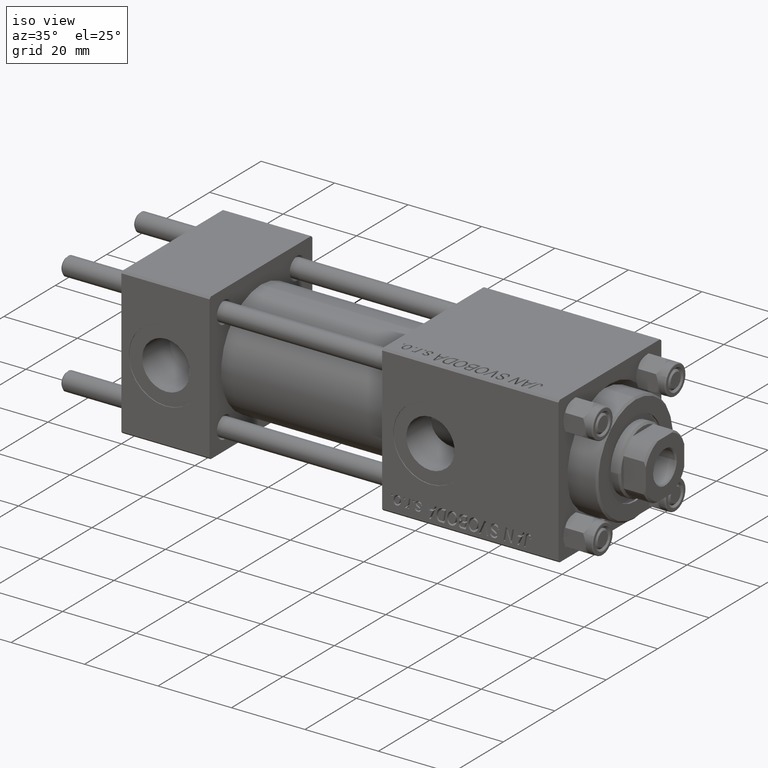
[diagram: clean part render]
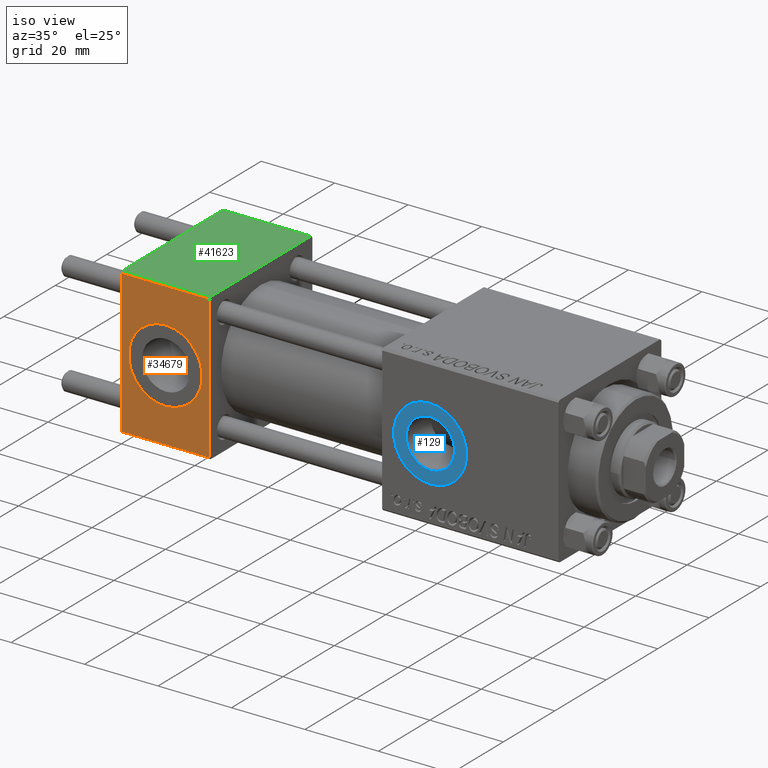
[diagram: same view with three faces highlighted in distinct colors, each labeled with its STEP entity id]
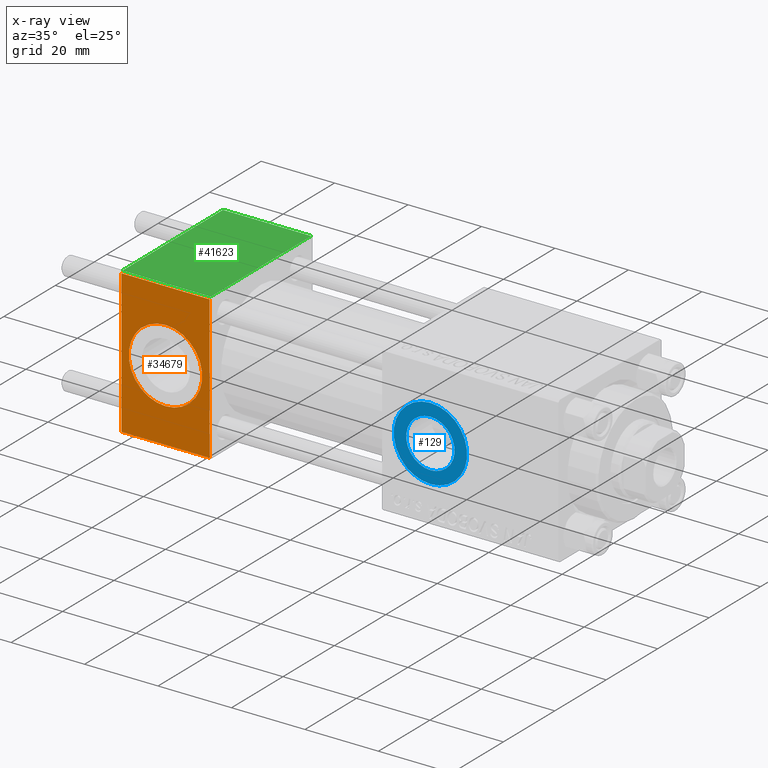
[diagram: x-ray of the same camera — body ghosted, the three highlighted faces saturated]
A machine part, iso view with three faces highlighted in distinct colors.
The next image is the same camera in x-ray (body ghosted, the three faces saturated) — at least one of them is partly hidden behind the body in this view.
Their STEP definitions:

[orange] entity #34679 — the highlighted planar face has unit normal (0, 1, 0).
#209 = VECTOR ( 'NONE', #28064, 1000.000000000000000 ) ;
#1475 = CARTESIAN_POINT ( 'NONE',  ( 24.00000000000000000, -20.00000000000000355, 19.49999999999998224 ) ) ;
#1702 = EDGE_CURVE ( 'NONE', #36362, #7899, #15294, .T. ) ;
#3489 = CARTESIAN_POINT ( 'NONE',  ( 0.000000000000000000, -20.00000000000000355, 19.99999999999998934 ) ) ;
#5549 = CARTESIAN_POINT ( 'NONE',  ( 12.00000000000000178, -20.00000000000000355, 9.999999999999994671 ) ) ;
#5555 = CARTESIAN_POINT ( 'NONE',  ( 24.00000000000000000, -20.00000000000000000, -19.49999999999999645 ) ) ;
#6173 = FACE_OUTER_BOUND ( 'NONE', #49601, .T. ) ;
#6417 = DIRECTION ( 'NONE',  ( -0.000000000000000000, 1.000000000000000000, 8.673617379884036705E-17 ) ) ;
#7899 = VERTEX_POINT ( 'NONE', #24093 ) ;
#9008 = VERTEX_POINT ( 'NONE', #1475 ) ;
#11411 = EDGE_CURVE ( 'NONE', #23133, #46615, #46999, .T. ) ;
#11420 = LINE ( 'NONE', #15208, #23187 ) ;
#15031 = ORIENTED_EDGE ( 'NONE', *, *, #21640, .T. ) ;
#15208 = CARTESIAN_POINT ( 'NONE',  ( 24.00000000000000000, -20.00000000000000355, 19.49999999999998224 ) ) ;
#15294 = LINE ( 'NONE', #3489, #34773 ) ;
#15801 = ORIENTED_EDGE ( 'NONE', *, *, #23458, .T. ) ;
#17106 = VERTEX_POINT ( 'NONE', #5555 ) ;
#17409 = DIRECTION ( 'NONE',  ( 0.000000000000000000, 0.000000000000000000, -1.000000000000000000 ) ) ;
#17875 = CIRCLE ( 'NONE', #37146, 9.999999999999996447 ) ;
#18143 = CARTESIAN_POINT ( 'NONE',  ( 12.00000000000000000, -20.00000000000000355, -1.734723475976807883E-15 ) ) ;
#18754 = DIRECTION ( 'NONE',  ( -1.000000000000000000, 0.000000000000000000, 0.000000000000000000 ) ) ;
#19706 = AXIS2_PLACEMENT_3D ( 'NONE', #18143, #49543, #44522 ) ;
#20153 = LINE ( 'NONE', #23677, #32773 ) ;
#21536 = CARTESIAN_POINT ( 'NONE',  ( 24.00000000000000000, -20.00000000000000355, 19.99999999999998934 ) ) ;
#21640 = EDGE_CURVE ( 'NONE', #7899, #17106, #20153, .T. ) ;
#21778 = DIRECTION ( 'NONE',  ( 0.000000000000000000, -8.673617379884036705E-17, 1.000000000000000000 ) ) ;
#23133 = VERTEX_POINT ( 'NONE', #5549 ) ;
#23187 = VECTOR ( 'NONE', #18754, 1000.000000000000000 ) ;
#23458 = EDGE_CURVE ( 'NONE', #9008, #36362, #11420, .T. ) ;
#23677 = CARTESIAN_POINT ( 'NONE',  ( 24.00000000000000000, -20.00000000000000000, -19.49999999999999645 ) ) ;
#24093 = CARTESIAN_POINT ( 'NONE',  ( 0.000000000000000000, -20.00000000000000000, -19.49999999999999645 ) ) ;
#24158 = ORIENTED_EDGE ( 'NONE', *, *, #37279, .F. ) ;
#24992 = EDGE_LOOP ( 'NONE', ( #34211, #44038 ) ) ;
#25951 = DIRECTION ( 'NONE',  ( 0.000000000000000000, -1.000000000000000000, -8.673617379884036705E-17 ) ) ;
#28064 = DIRECTION ( 'NONE',  ( 0.000000000000000000, 8.673617379884036705E-17, -1.000000000000000000 ) ) ;
#29073 = FACE_BOUND ( 'NONE', #24992, .T. ) ;
#29881 = AXIS2_PLACEMENT_3D ( 'NONE', #21536, #6417, #21778 ) ;
#31713 = DIRECTION ( 'NONE',  ( 1.000000000000000000, 0.000000000000000000, 0.000000000000000000 ) ) ;
#32073 = LINE ( 'NONE', #43143, #209 ) ;
#32773 = VECTOR ( 'NONE', #31713, 1000.000000000000000 ) ;
#34211 = ORIENTED_EDGE ( 'NONE', *, *, #35802, .F. ) ;
#34487 = ORIENTED_EDGE ( 'NONE', *, *, #1702, .T. ) ;
#34679 = ADVANCED_FACE ( 'NONE', ( #29073, #6173 ), #41118, .F. ) ;
#34773 = VECTOR ( 'NONE', #41215, 1000.000000000000000 ) ;
#35802 = EDGE_CURVE ( 'NONE', #46615, #23133, #17875, .T. ) ;
#36362 = VERTEX_POINT ( 'NONE', #44428 ) ;
#37146 = AXIS2_PLACEMENT_3D ( 'NONE', #44799, #25951, #17409 ) ;
#37279 = EDGE_CURVE ( 'NONE', #9008, #17106, #32073, .T. ) ;
#41118 = PLANE ( 'NONE',  #29881 ) ;
#41215 = DIRECTION ( 'NONE',  ( 0.000000000000000000, 8.673617379884036705E-17, -1.000000000000000000 ) ) ;
#43143 = CARTESIAN_POINT ( 'NONE',  ( 24.00000000000000000, -20.00000000000000355, 19.99999999999998934 ) ) ;
#44038 = ORIENTED_EDGE ( 'NONE', *, *, #11411, .F. ) ;
#44428 = CARTESIAN_POINT ( 'NONE',  ( 0.000000000000000000, -20.00000000000000355, 19.49999999999998224 ) ) ;
#44522 = DIRECTION ( 'NONE',  ( 0.000000000000000000, 0.000000000000000000, -1.000000000000000000 ) ) ;
#44799 = CARTESIAN_POINT ( 'NONE',  ( 12.00000000000000000, -20.00000000000000355, -1.734723475976807883E-15 ) ) ;
#46615 = VERTEX_POINT ( 'NONE', #47269 ) ;
#46999 = CIRCLE ( 'NONE', #19706, 9.999999999999996447 ) ;
#47269 = CARTESIAN_POINT ( 'NONE',  ( 12.00000000000000000, -20.00000000000000355, -9.999999999999998224 ) ) ;
#49543 = DIRECTION ( 'NONE',  ( 0.000000000000000000, -1.000000000000000000, -8.673617379884036705E-17 ) ) ;
#49601 = EDGE_LOOP ( 'NONE', ( #34487, #15031, #24158, #15801 ) ) ;

[blue] entity #129 — the highlighted planar face has unit normal (0, -1, -0).
#129 = ADVANCED_FACE ( 'NONE', ( #49597, #10884 ), #45077, .T. ) ;
#1379 = VERTEX_POINT ( 'NONE', #48549 ) ;
#1425 = CARTESIAN_POINT ( 'NONE',  ( 84.00000000000000000, -19.80000000000000426, -1.717376241217039812E-15 ) ) ;
#3446 = AXIS2_PLACEMENT_3D ( 'NONE', #4674, #35585, #46410 ) ;
#4674 = CARTESIAN_POINT ( 'NONE',  ( 84.00000000000000000, -19.80000000000000426, -1.717376241217039812E-15 ) ) ;
#5260 = DIRECTION ( 'NONE',  ( 0.000000000000000000, 0.000000000000000000, -1.000000000000000000 ) ) ;
#6024 = CIRCLE ( 'NONE', #46961, 9.999999999999994671 ) ;
#7353 = CIRCLE ( 'NONE', #42661, 9.999999999999994671 ) ;
#7580 = CARTESIAN_POINT ( 'NONE',  ( 84.00000000000000000, -19.80000000000000426, 6.580000000000000071 ) ) ;
#8093 = DIRECTION ( 'NONE',  ( 0.000000000000000000, 0.000000000000000000, -1.000000000000000000 ) ) ;
#8490 = ORIENTED_EDGE ( 'NONE', *, *, #29656, .T. ) ;
#9873 = ORIENTED_EDGE ( 'NONE', *, *, #37254, .F. ) ;
#10884 = FACE_OUTER_BOUND ( 'NONE', #43493, .T. ) ;
#12879 = ORIENTED_EDGE ( 'NONE', *, *, #25104, .F. ) ;
#12991 = DIRECTION ( 'NONE',  ( 0.000000000000000000, -1.000000000000000000, -8.673617379884036705E-17 ) ) ;
#14415 = DIRECTION ( 'NONE',  ( 0.000000000000000000, -1.000000000000000000, -8.673617379884036705E-17 ) ) ;
#14684 = CIRCLE ( 'NONE', #3446, 6.580000000000001847 ) ;
#17853 = AXIS2_PLACEMENT_3D ( 'NONE', #38052, #14415, #48847 ) ;
#17939 = EDGE_LOOP ( 'NONE', ( #12879, #9873 ) ) ;
#18477 = CIRCLE ( 'NONE', #48956, 6.580000000000001847 ) ;
#21112 = DIRECTION ( 'NONE',  ( 0.000000000000000000, -1.000000000000000000, -8.673617379884036705E-17 ) ) ;
#21799 = CARTESIAN_POINT ( 'NONE',  ( 84.00000000000000000, -19.80000000000000426, -9.999999999999996447 ) ) ;
#25104 = EDGE_CURVE ( 'NONE', #43225, #36669, #18477, .T. ) ;
#27229 = CARTESIAN_POINT ( 'NONE',  ( 84.00000000000000000, -19.80000000000000426, -1.717376241217039812E-15 ) ) ;
#29656 = EDGE_CURVE ( 'NONE', #40244, #1379, #7353, .T. ) ;
#31150 = ORIENTED_EDGE ( 'NONE', *, *, #43144, .T. ) ;
#33119 = CARTESIAN_POINT ( 'NONE',  ( 84.00000000000000000, -19.80000000000000426, -6.580000000000003624 ) ) ;
#35585 = DIRECTION ( 'NONE',  ( 0.000000000000000000, -1.000000000000000000, -8.673617379884036705E-17 ) ) ;
#36669 = VERTEX_POINT ( 'NONE', #7580 ) ;
#37254 = EDGE_CURVE ( 'NONE', #36669, #43225, #14684, .T. ) ;
#38052 = CARTESIAN_POINT ( 'NONE',  ( 84.00000000000000000, -19.80000000000000426, -1.717376241217039812E-15 ) ) ;
#39714 = CARTESIAN_POINT ( 'NONE',  ( 84.00000000000000000, -19.80000000000000426, -1.717376241217039812E-15 ) ) ;
#40244 = VERTEX_POINT ( 'NONE', #21799 ) ;
#42661 = AXIS2_PLACEMENT_3D ( 'NONE', #27229, #43539, #8093 ) ;
#43144 = EDGE_CURVE ( 'NONE', #1379, #40244, #6024, .T. ) ;
#43225 = VERTEX_POINT ( 'NONE', #33119 ) ;
#43428 = DIRECTION ( 'NONE',  ( 0.000000000000000000, 0.000000000000000000, -1.000000000000000000 ) ) ;
#43493 = EDGE_LOOP ( 'NONE', ( #8490, #31150 ) ) ;
#43539 = DIRECTION ( 'NONE',  ( 0.000000000000000000, -1.000000000000000000, -8.673617379884036705E-17 ) ) ;
#45077 = PLANE ( 'NONE',  #17853 ) ;
#46410 = DIRECTION ( 'NONE',  ( 0.000000000000000000, 0.000000000000000000, -1.000000000000000000 ) ) ;
#46961 = AXIS2_PLACEMENT_3D ( 'NONE', #1425, #12991, #43428 ) ;
#48549 = CARTESIAN_POINT ( 'NONE',  ( 84.00000000000000000, -19.80000000000000426, 9.999999999999992895 ) ) ;
#48847 = DIRECTION ( 'NONE',  ( 0.000000000000000000, 8.673617379884036705E-17, -1.000000000000000000 ) ) ;
#48956 = AXIS2_PLACEMENT_3D ( 'NONE', #39714, #21112, #5260 ) ;
#49597 = FACE_BOUND ( 'NONE', #17939, .T. ) ;

[green] entity #41623 — the highlighted planar face has unit normal (0, 0, -1).
#423 = EDGE_CURVE ( 'NONE', #427, #13139, #21421, .T. ) ;
#427 = VERTEX_POINT ( 'NONE', #17130 ) ;
#2031 = CARTESIAN_POINT ( 'NONE',  ( 24.00000000000000000, 20.00000000000000000, 20.00000000000000000 ) ) ;
#2039 = CARTESIAN_POINT ( 'NONE',  ( 24.00000000000000000, 20.00000000000000000, 20.00000000000000000 ) ) ;
#3480 = DIRECTION ( 'NONE',  ( -1.000000000000000000, 0.000000000000000000, 0.000000000000000000 ) ) ;
#4842 = VERTEX_POINT ( 'NONE', #34416 ) ;
#6418 = VECTOR ( 'NONE', #3480, 1000.000000000000000 ) ;
#6993 = ORIENTED_EDGE ( 'NONE', *, *, #14080, .T. ) ;
#8502 = ORIENTED_EDGE ( 'NONE', *, *, #25215, .T. ) ;
#9084 = DIRECTION ( 'NONE',  ( 0.000000000000000000, 1.000000000000000000, 2.602085213965210149E-16 ) ) ;
#9815 = DIRECTION ( 'NONE',  ( 1.000000000000000000, 0.000000000000000000, 0.000000000000000000 ) ) ;
#10133 = VECTOR ( 'NONE', #9815, 1000.000000000000000 ) ;
#10396 = DIRECTION ( 'NONE',  ( 0.000000000000000000, -1.000000000000000000, -2.602085213965210149E-16 ) ) ;
#10419 = EDGE_LOOP ( 'NONE', ( #49231, #6993, #21997, #8502 ) ) ;
#13139 = VERTEX_POINT ( 'NONE', #39792 ) ;
#14080 = EDGE_CURVE ( 'NONE', #4842, #13139, #47539, .T. ) ;
#15184 = CARTESIAN_POINT ( 'NONE',  ( 0.000000000000000000, 19.50000000000000000, 20.00000000000000000 ) ) ;
#15796 = EDGE_CURVE ( 'NONE', #26601, #4842, #26509, .T. ) ;
#16295 = VECTOR ( 'NONE', #17635, 1000.000000000000000 ) ;
#17130 = CARTESIAN_POINT ( 'NONE',  ( 24.00000000000000000, 19.50000000000000000, 20.00000000000000000 ) ) ;
#17635 = DIRECTION ( 'NONE',  ( 0.000000000000000000, -1.000000000000000000, -2.602085213965210149E-16 ) ) ;
#18471 = CARTESIAN_POINT ( 'NONE',  ( 0.000000000000000000, 20.00000000000000000, 20.00000000000000000 ) ) ;
#21421 = LINE ( 'NONE', #2031, #16295 ) ;
#21997 = ORIENTED_EDGE ( 'NONE', *, *, #423, .F. ) ;
#23863 = VECTOR ( 'NONE', #10396, 1000.000000000000000 ) ;
#25215 = EDGE_CURVE ( 'NONE', #427, #26601, #49243, .T. ) ;
#26509 = LINE ( 'NONE', #18471, #23863 ) ;
#26601 = VERTEX_POINT ( 'NONE', #15184 ) ;
#27678 = AXIS2_PLACEMENT_3D ( 'NONE', #2039, #43291, #9084 ) ;
#28457 = CARTESIAN_POINT ( 'NONE',  ( 24.00000000000000000, -19.49999999999999289, 19.99999999999998934 ) ) ;
#28724 = PLANE ( 'NONE',  #27678 ) ;
#32228 = FACE_OUTER_BOUND ( 'NONE', #10419, .T. ) ;
#34416 = CARTESIAN_POINT ( 'NONE',  ( 0.000000000000000000, -19.49999999999999289, 19.99999999999998934 ) ) ;
#37942 = CARTESIAN_POINT ( 'NONE',  ( 0.000000000000000000, 19.50000000000000000, 20.00000000000000000 ) ) ;
#39792 = CARTESIAN_POINT ( 'NONE',  ( 24.00000000000000000, -19.49999999999999289, 19.99999999999998934 ) ) ;
#41623 = ADVANCED_FACE ( 'NONE', ( #32228 ), #28724, .F. ) ;
#43291 = DIRECTION ( 'NONE',  ( 0.000000000000000000, 2.602085213965210149E-16, -1.000000000000000000 ) ) ;
#47539 = LINE ( 'NONE', #28457, #10133 ) ;
#49231 = ORIENTED_EDGE ( 'NONE', *, *, #15796, .T. ) ;
#49243 = LINE ( 'NONE', #37942, #6418 ) ;